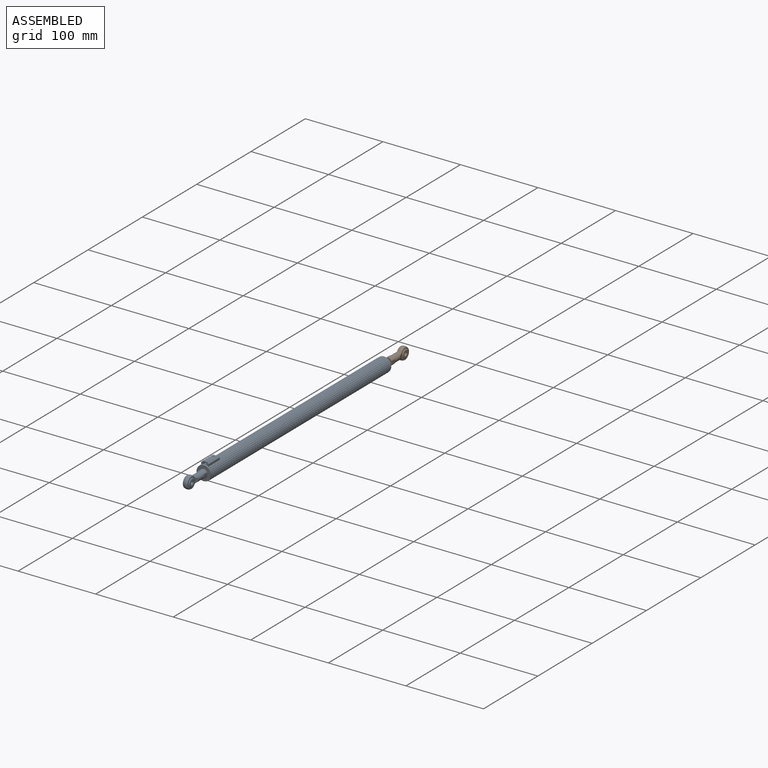
[diagram: assembled view]
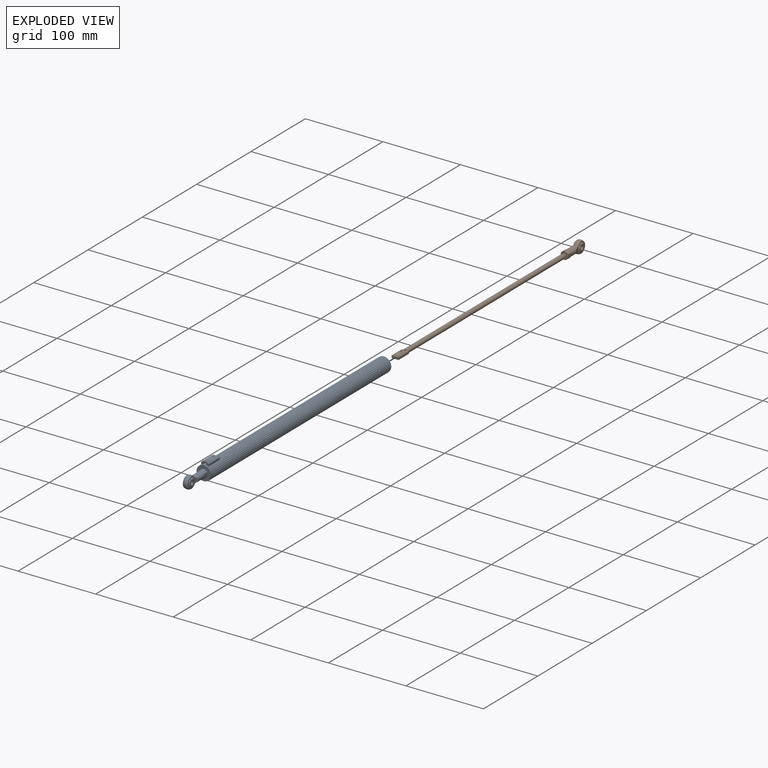
[diagram: exploded view]
GUIDED TOUR — MATED ASSEMBLY WITH SUBASSEMBLIES (Onshape document 5767f70fe4b010eb1df92889, AutoMate assembly 5767f70fe4b010eb1df92889_27be3b93b1e5c1f5fff00316_6da6b8a774ced0080a5d3e45_default)

This assembly has 11 component occurrences arranged in 2 top-level units: 0 individual components plus 2 subassemblies (S0, S1). The tour has two levels: first the top level, where each subassembly is treated as one rigid unit; then each subassembly is toured internally in its own section (nesting deeper than one subassembly level is flattened into its subassembly's section).

Components are labeled P0..P10 across the whole record; subassembly units are labeled S0..S1. A mate is a constraint between two units; its type names the relative motion it leaves free:
  FASTENED — locks the two components together rigidly (no relative motion),
  SLIDER — leaves translation along the listed axis free.
Axis/direction vectors are unit vectors and 'through' points are millimeter coordinates, both in the assembly's world frame.

TOP-LEVEL MATES (between units; each subassembly's internal mates are listed in its own section)
  1. SLIDER "Slider 1": S0 <-> S1, axis (0.000, 1.000, 0.000) through (0.10, -73.15, -0.04) mm

TOP-LEVEL ASSEMBLY ORDER
  1. S1 — the base component [order verified]
  2. S0 [order verified]
Order-tag legend:
  [order verified] — this step's position reverses a verified removal order: the component was checked to insert without passing through the ones already placed.

Of the 11 component occurrences, 5 carry the full construction recipe — the FeatureScript program that regenerates the part's solid from scratch; the rest are supplied as boundary geometry only. Each toured unit is shown spotlighted twice — assembled, then exploded with a leader line back to its socket (green = recipe-attached component, orange = geometry-only, blue = subassembly unit; the rest desaturated gray).
NOTE — this tour is split across 3 documents so each fits a 32k-token context. This is document 1: the component sections continue in the remaining 2 documents, each repeating the header above.
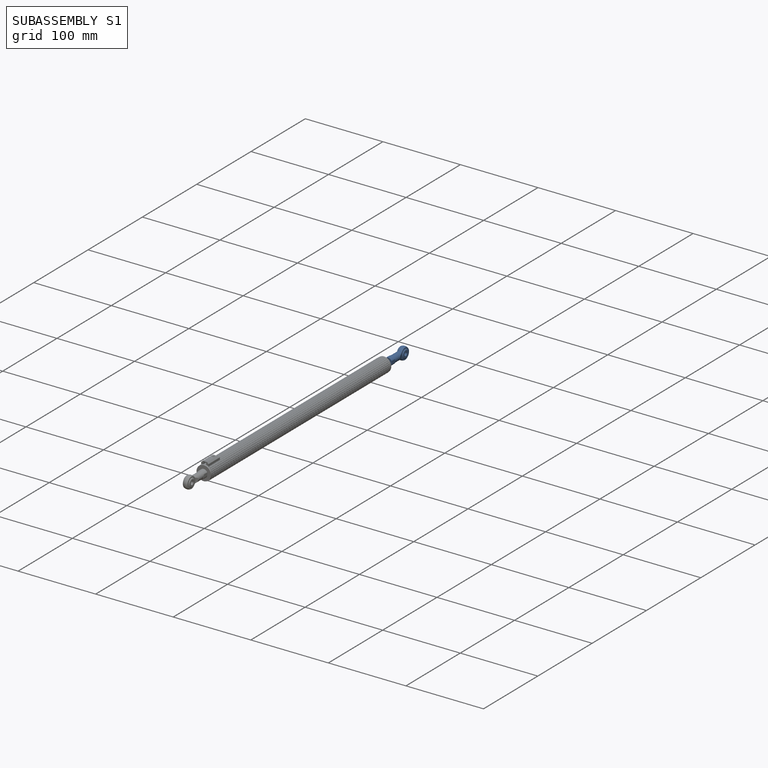
[diagram: subassembly S1 — assembled]
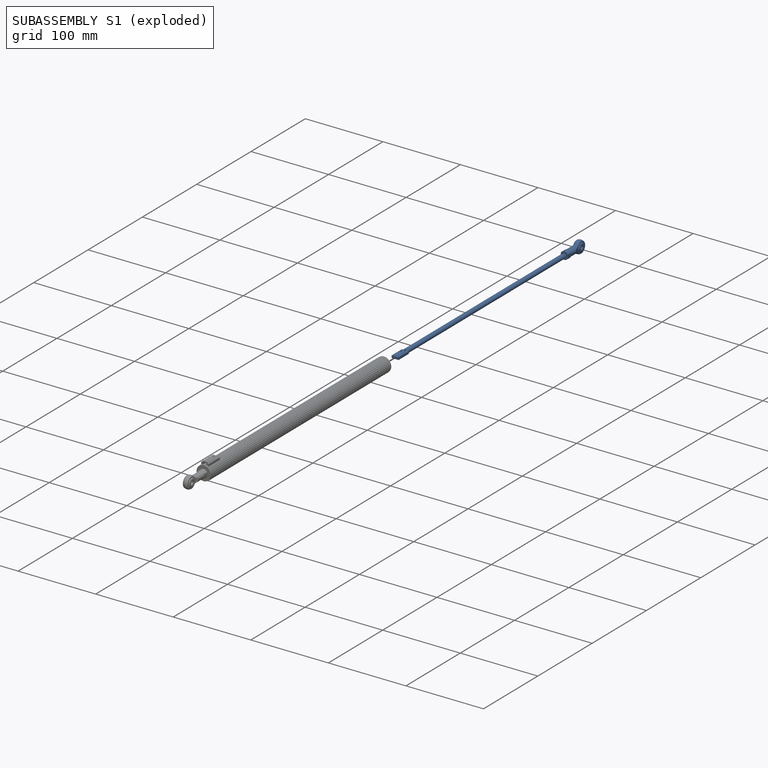
[diagram: subassembly S1 — exploded]
SUBASSEMBLY S1 — 3 components (P7, P9, P10), of which 1 recipe-attached; toured below.
Held by: SLIDER mate "Slider 1" to S0.
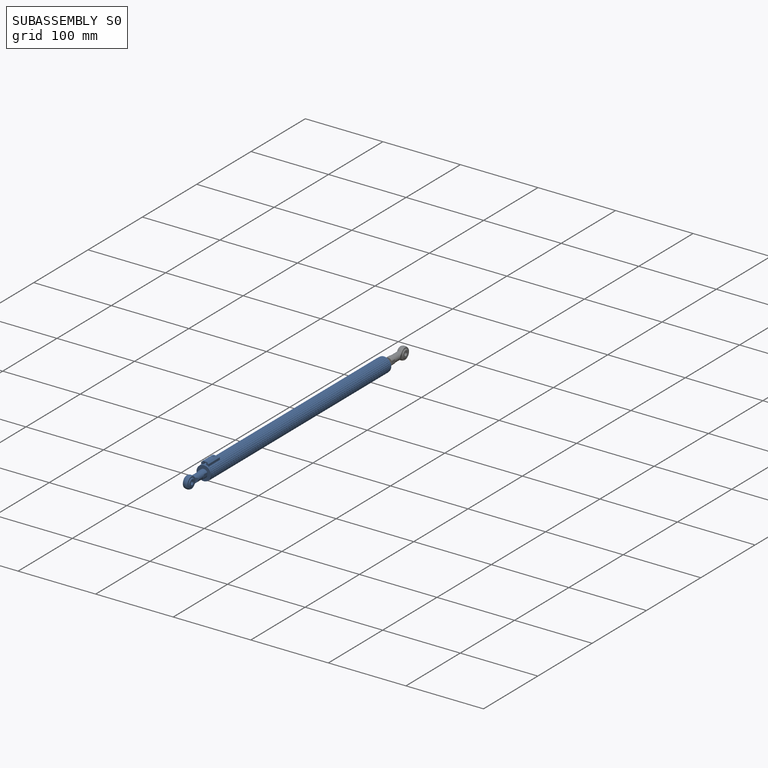
[diagram: subassembly S0 — assembled]
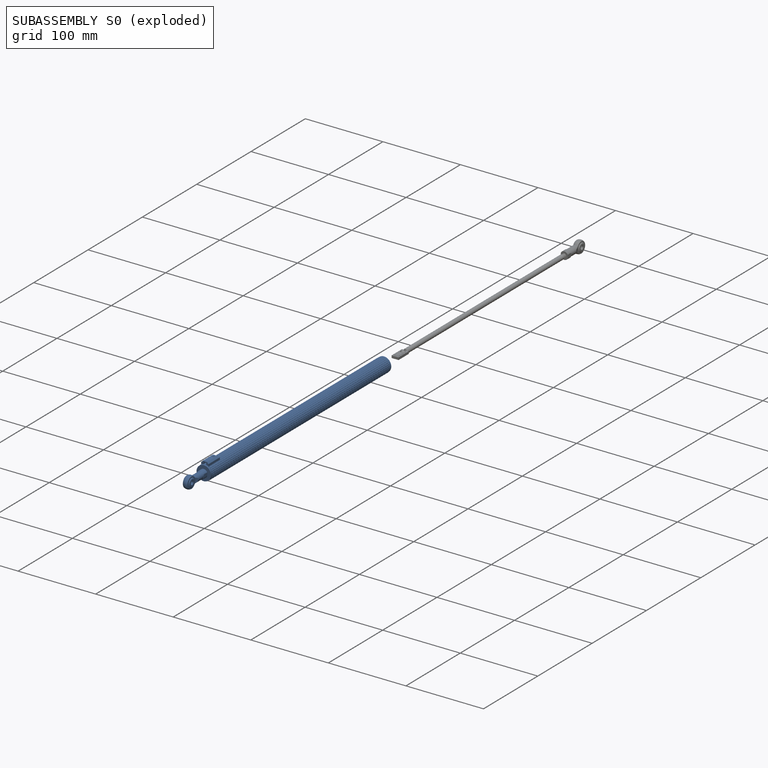
[diagram: subassembly S0 — exploded]
SUBASSEMBLY S0 — 8 components (P0, P1, P2, P3, P4, P5, P6, P8), of which 4 recipe-attached; toured below.
Held by: SLIDER mate "Slider 1" to S1.
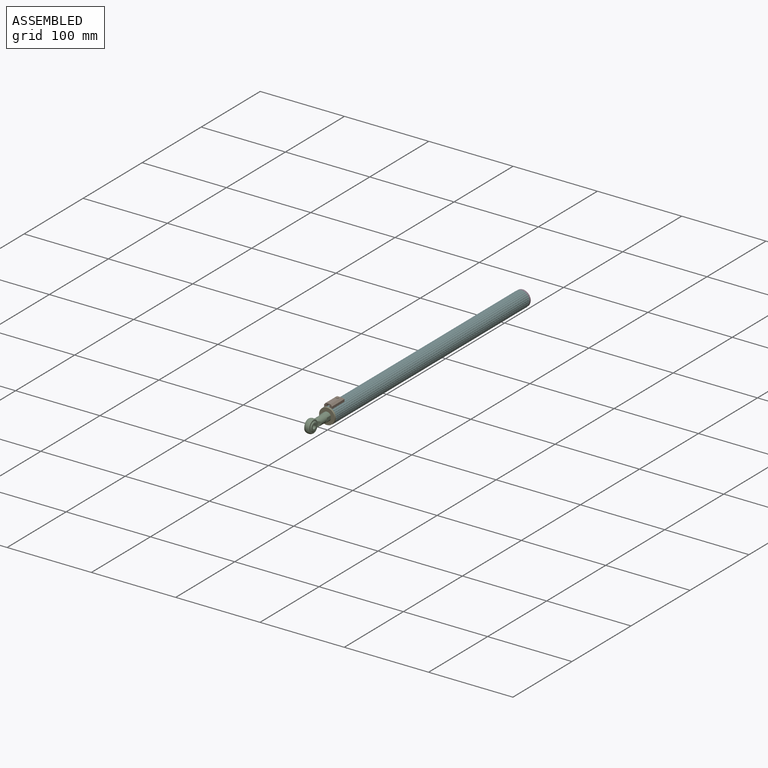
[diagram: subassembly S0 — assembled view]
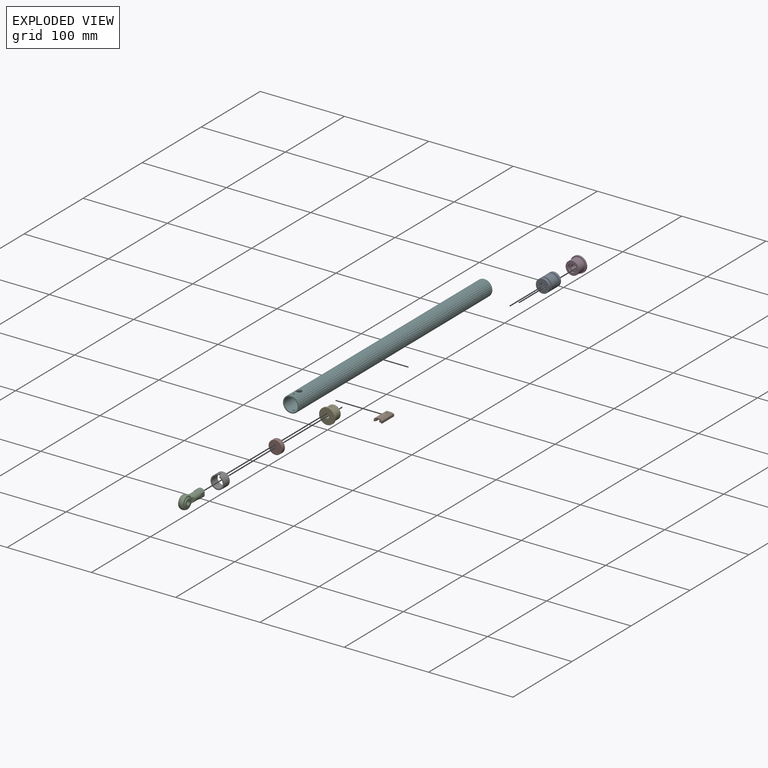
[diagram: subassembly S0 — exploded view]
SUBASSEMBLY S0 TOUR — 8 components, shown here in isolation at its own camera.

INTERNAL MATES
  1. FASTENED "Fastened 5": P4 <-> P1, direction (0.000, 1.000, 0.000) through (0.10, -99.15, -0.04) mm
  2. FASTENED "Fastened 3": P0 <-> P5, direction (0.000, -1.000, 0.000) through (0.10, 197.85, -0.04) mm
  3. FASTENED "Fastened 4": P8 <-> P5, direction (0.000, 1.000, 0.000) through (0.10, -73.15, -0.04) mm
  4. FASTENED "Fastened 7": P4 <-> P5, direction (0.000, 1.000, 0.000) through (0.10, -99.15, -0.04) mm
  5. FASTENED "Fastened 6": P3 <-> P5, direction (0.000, -1.000, 0.000) through (0.10, 228.85, -0.04) mm
  6. FASTENED "Fastened 2": P8 <-> P6, direction (0.000, -1.000, 0.000) through (0.10, -78.15, -0.04) mm
  7. FASTENED "Fastened 1": P4 <-> P2, direction (0.000, -1.000, 0.000) through (0.10, -101.15, -0.04) mm
  8. FASTENED "Fastened 7": P4 <-> P5, direction (0.000, 1.000, 0.000) through (0.10, -99.15, -0.04) mm
  9. FASTENED "Fastened 3": P0 <-> P5, direction (0.000, -1.000, 0.000) through (0.10, 197.85, -0.04) mm
  10. FASTENED "Fastened 1": P4 <-> P2, direction (0.000, -1.000, 0.000) through (0.10, -101.15, -0.04) mm
  11. FASTENED "Fastened 4": P8 <-> P5, direction (0.000, 1.000, 0.000) through (0.10, -73.15, -0.04) mm
  12. FASTENED "Fastened 5": P4 <-> P1, direction (0.000, 1.000, 0.000) through (0.10, -99.15, -0.04) mm
  13. FASTENED "Fastened 6": P3 <-> P5, direction (0.000, -1.000, 0.000) through (0.10, 228.85, -0.04) mm
  14. FASTENED "Fastened 2": P8 <-> P6, direction (0.000, -1.000, 0.000) through (0.10, -78.15, -0.04) mm

ASSEMBLY ORDER (within the subassembly)
  1. P4 — the base component [order verified]
  2. P6 [order verified]
  3. P8 [order verified]
  4. P2 [order verified]
  5. P5 [order verified]
  6. P0 [order verified]
  7. P1 [order verified]
  8. P3 [order verified]
Order-tag legend:
  [order verified] — this step's position reverses a verified removal order: the component was checked to insert without passing through the ones already placed.
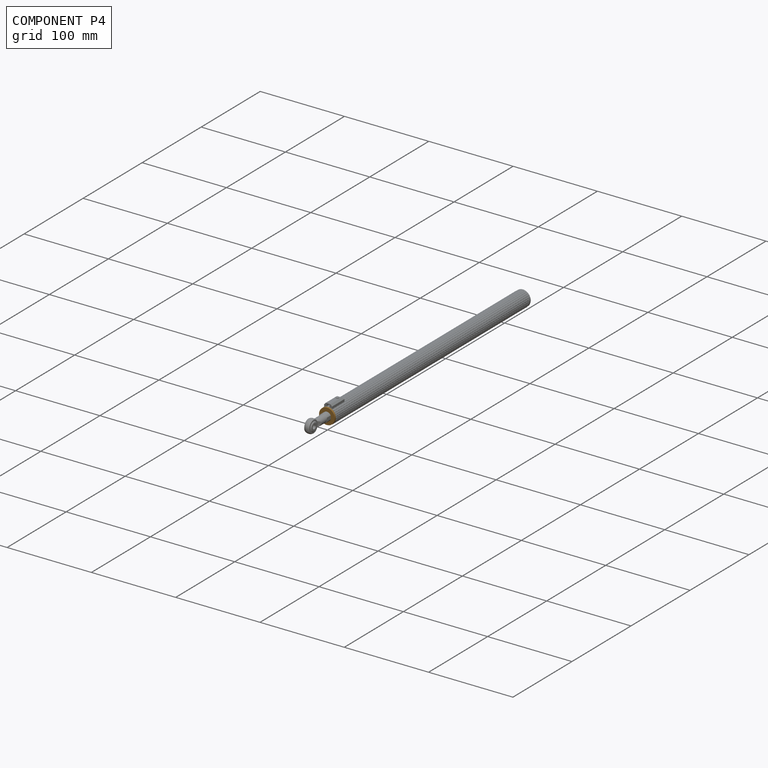
[diagram: component P4 — assembled]
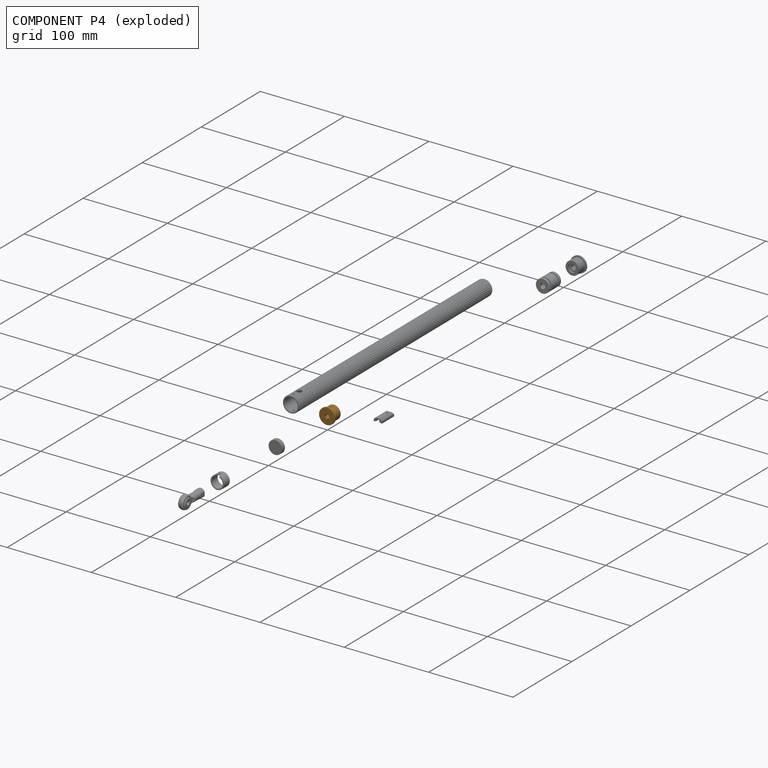
[diagram: component P4 — exploded]
COMPONENT P4 — geometry summary (no construction recipe available for this part):
  bounding box: 18.6 x 18.6 x 12.0 mm
  B-rep topology: 1 solid, 14 faces, 64 edges
  volume: 2049 mm^3 (49% of its bounding box)
  symmetry: 2-fold rotationally symmetric about the y axis; mirror-symmetric across its x mid-plane, z mid-plane
Held by: FASTENED mate "Fastened 5" to P1; FASTENED mate "Fastened 7" to P5; FASTENED mate "Fastened 1" to P2; FASTENED mate "Fastened 7" to P5; FASTENED mate "Fastened 1" to P2; FASTENED mate "Fastened 5" to P1.
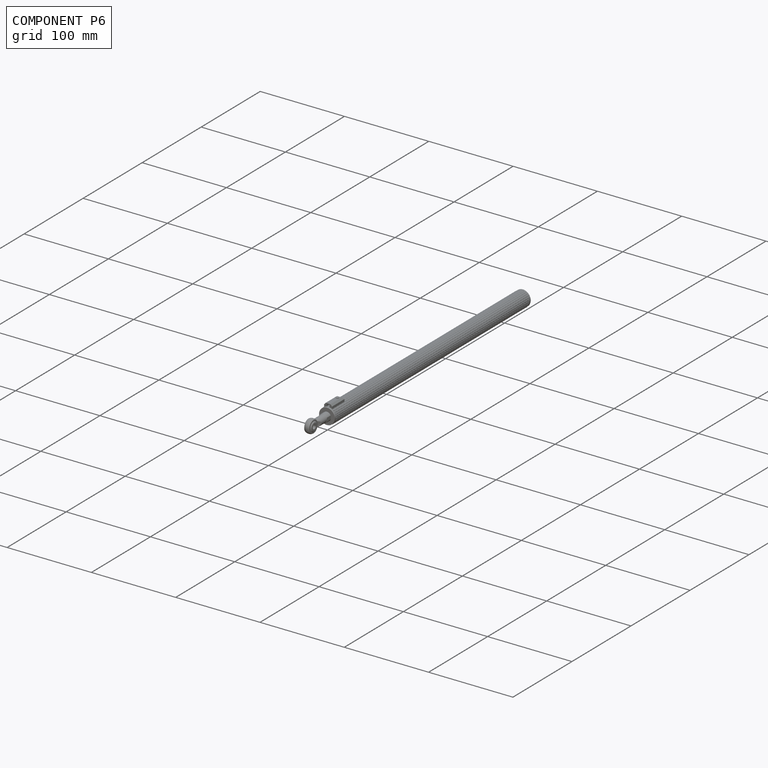
[diagram: component P6 — assembled]
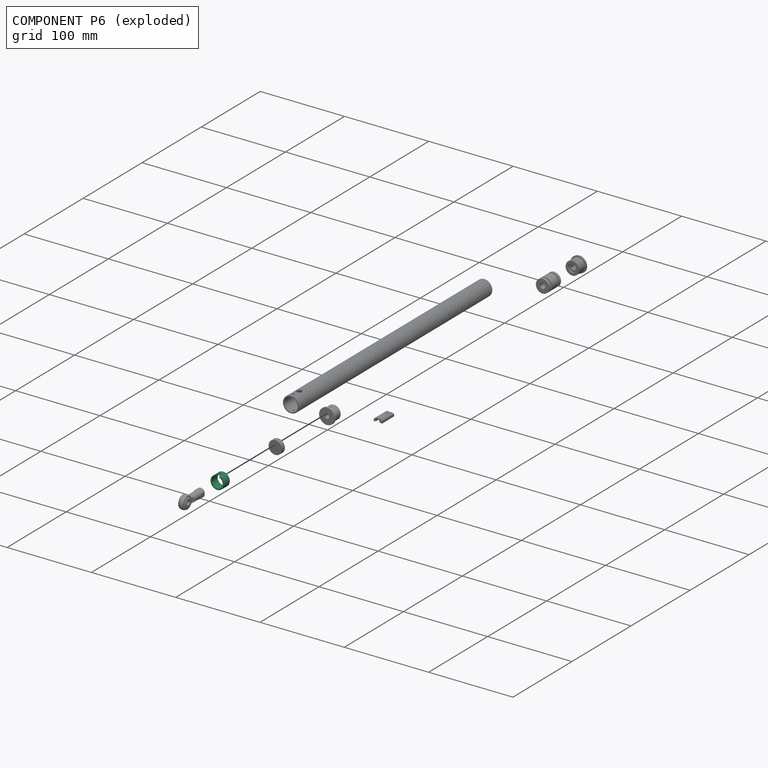
[diagram: component P6 — exploded]
COMPONENT P6 — recipe-attached (CADFS 00166288, mesh-verified: the recipe's output STEP matches this component's geometry to below the mesh-comparison resolution (tessellation chordal tolerance ~0.0369 mm)).
Held by: FASTENED mate "Fastened 2" to P8; FASTENED mate "Fastened 2" to P8.
Construction recipe (FeatureScript — the CAD program that rebuilds this solid; sketch coordinates are in the units given by the * unit suffixes, e.g. mm):

FeatureScript 1511;
import(path : "onshape/std/geometry.fs", version : "1511.0");
import(path : "onshape/std/common.fs", version : "1511.0");
const mm = millimeter;
const VERTEX = EntityType.VERTEX;
const EDGE = EntityType.EDGE;
const FACE = EntityType.FACE;
const BODY = EntityType.BODY;
function v(x, y){return vector(x, y);}
function OD(order){return orderDisambiguation(order);}
function OSD(set){return originalSetDisambiguation(set);}
function TD(topology){return topologyDisambiguation(topology);}
function TDD(query){return trueDependencyDisambiguation(query);}
function sQuery(a, b, c) {return sketchEntityQuery(a, b, c);}

annotation { "Feature Type Name" : "Feature", "Feature Type Description" : "" }
export const myFeature = defineFeature(function(context is Context, id is Id, definition is map)
    precondition{}
    {
        {
            assignVariable(context, id + "F0", {"name" : "Main_Length", "anyValue" : 10});
        }
        {
            var Q0;
            Q0=qCreatedBy(makeId("Front.planeOp"),FACE);
            var sketch = newSketch(context, id + "F1", { "sketchPlane" : qUnion([Q0])});
            skCircle(sketch, "E0", {"center": v(0, 0) * mm, "radius": 7.95 * mm});
            skCircle(sketch, "E1", {"center": v(0, 0) * mm, "radius": 6.5 * mm});
            skSolve(sketch);
        }
        {
            var Q0;
            Q0=makeQuery(id+"F1.imprint","IMPRINT",FACE,{"disambiguationData":[TD([[makeQuery(id+"F1.imprint","IMPRINT",EDGE,{"derivedFrom":sQuery(id+"F1.wireOp",EDGE,"E0")}),1.0]])]});
            extrude(context, id + "F2", {"entities" : qUnion([Q0]), "depth" : (getVariable(context, 'Main_Length')) * mm});
        }
        {
            var Q0;
            Q0=qCreatedBy(makeId("Top.planeOp"),FACE);
            var sketch = newSketch(context, id + "F3", { "sketchPlane" : qUnion([Q0])});
            skArc(sketch, "E2", {"start": v(2.5, -9) * mm, "mid": v(0, -6.5) * mm, "end": v(-2.5, -9) * mm});
            skLineSegment(sketch, "E3", {"start": v(-2.5, -9) * mm, "end": v(-2.5, -10) * mm});
            skLineSegment(sketch, "E4", {"start": v(2.5, -9) * mm, "end": v(2.5, -10) * mm});
            skLineSegment(sketch, "E5.0", {"start": v(7.95, -10) * mm, "end": v(-7.95, -10) * mm});
            skCircle(sketch, "E6", {"center": v(0, -5) * mm, "radius": 1 * mm});
            skSolve(sketch);
        }
        {
            var Q0;
            Q0=makeQuery(id+"F3.imprint","IMPRINT",FACE,{"disambiguationData":[TD([[makeQuery(id+"F3.imprint","IMPRINT",EDGE,{"derivedFrom":sQuery(id+"F3.wireOp",EDGE,"E6")}),1.0]])]});
            var Q1;
            Q1=makeQuery(id+"F3.imprint","IMPRINT",FACE,{"disambiguationData":[TD([[makeQuery(id+"F3.imprint","IMPRINT",EDGE,{"derivedFrom":sQuery(id+"F3.wireOp",EDGE,"E2")}),1.0]])]});
            extrude(context, id + "F4", {"entities" : qUnion([Q0, Q1]), "operationType" : NewBodyOperationType.REMOVE, "endBound" : BoundingType.THROUGH_ALL, "depth" : 25 * mm});
        }
    });
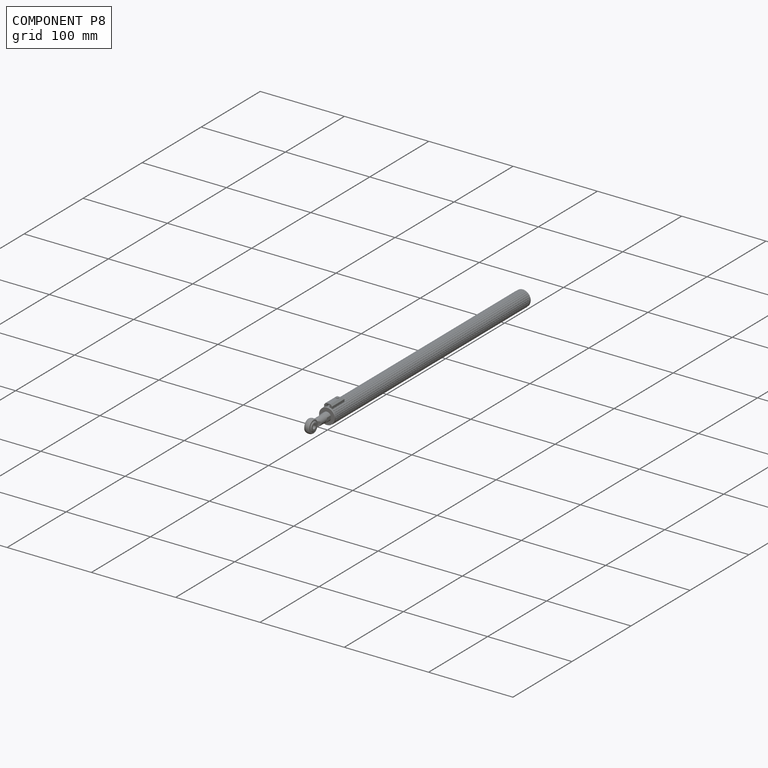
[diagram: component P8 — assembled]
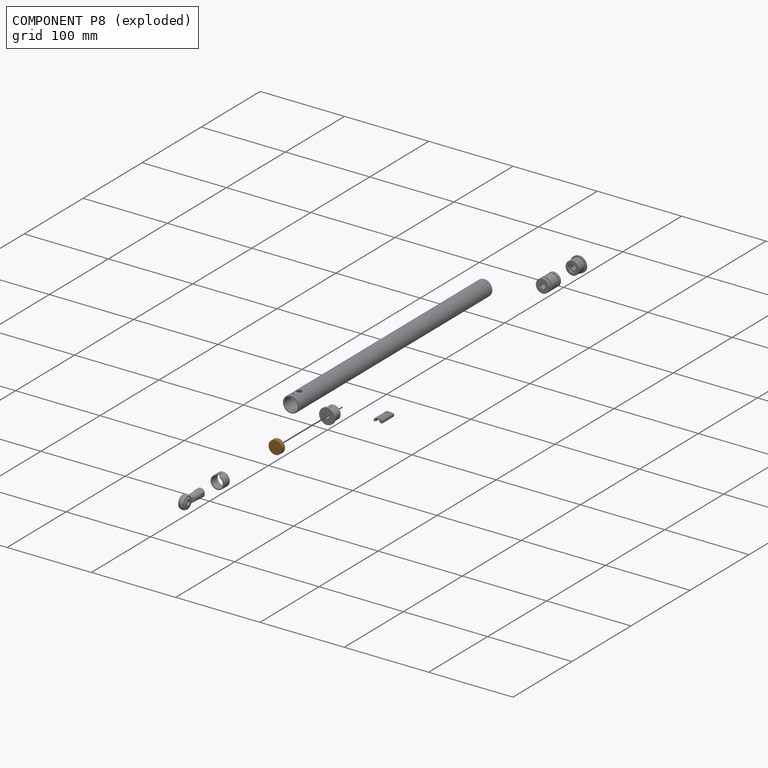
[diagram: component P8 — exploded]
COMPONENT P8 — geometry summary (no construction recipe available for this part):
  bounding box: 15.9 x 15.9 x 5.0 mm
  B-rep topology: 1 solid, 3 faces, 6 edges
  volume: 993 mm^3 (79% of its bounding box)
  symmetry: 2-fold rotationally symmetric about the x axis; revolution-symmetric about the y axis through its bounding-box center; 2-fold rotationally symmetric about the z axis; mirror-symmetric across its x mid-plane, y mid-plane, z mid-plane
Held by: FASTENED mate "Fastened 4" to P5; FASTENED mate "Fastened 2" to P6; FASTENED mate "Fastened 4" to P5; FASTENED mate "Fastened 2" to P6.
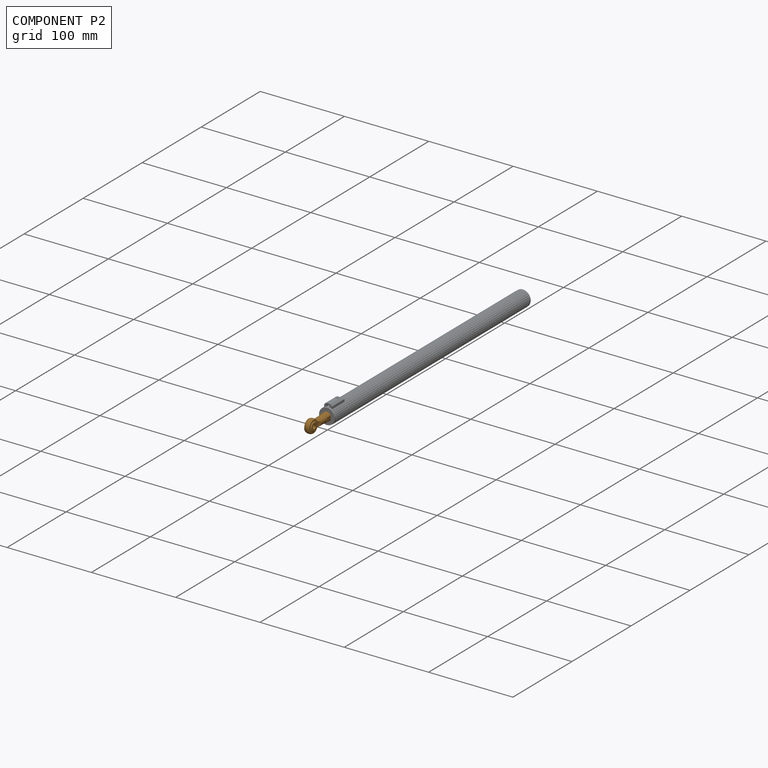
[diagram: component P2 — assembled]
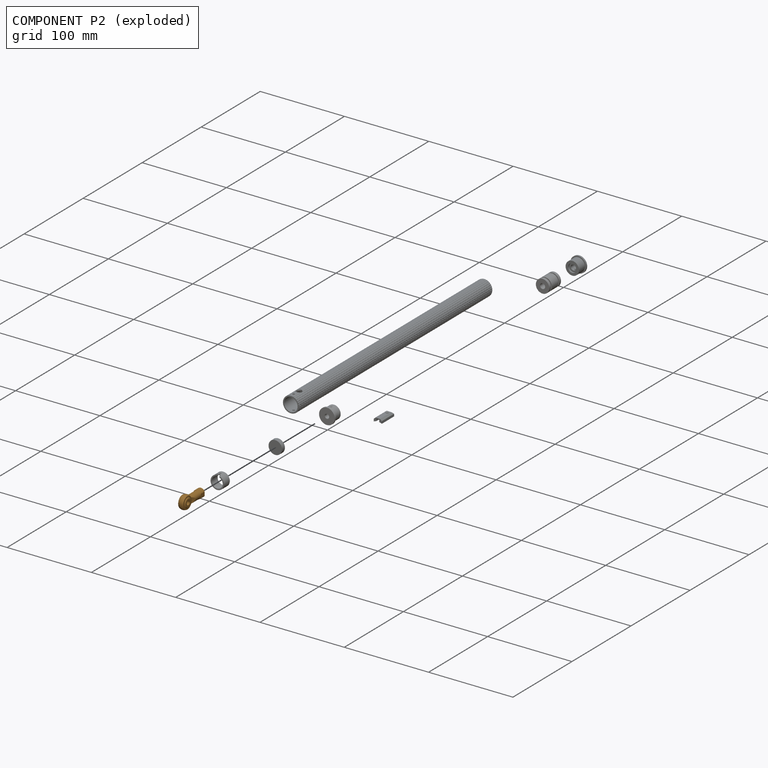
[diagram: component P2 — exploded]
COMPONENT P2 — geometry summary (no construction recipe available for this part):
  bounding box: 35.0 x 14.4 x 9.0 mm
  B-rep topology: 1 solid, 24 faces, 92 edges
  volume: 2172 mm^3 (48% of its bounding box)
  symmetry: 2-fold rotationally symmetric about the y axis; mirror-symmetric across its x mid-plane, z mid-plane
Held by: FASTENED mate "Fastened 1" to P4; FASTENED mate "Fastened 1" to P4.
